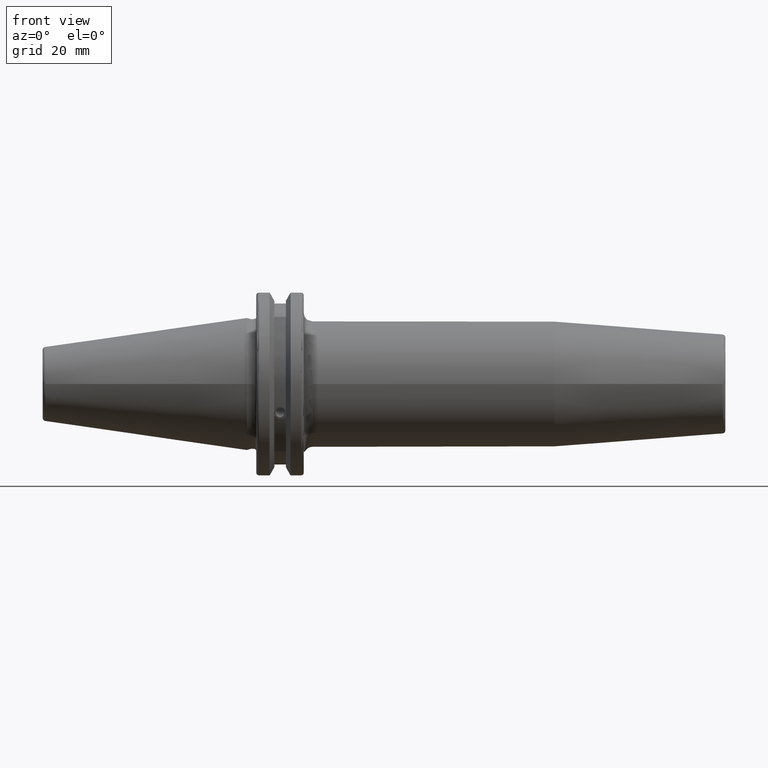
[diagram: clean part render]
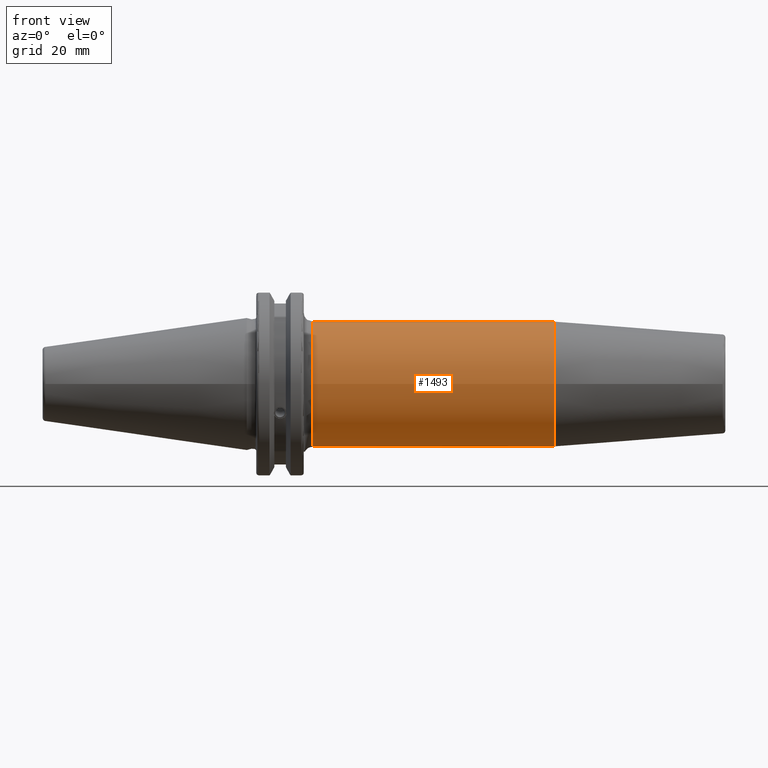
[diagram: same view with one face highlighted and labeled with its STEP entity id]
A machine part, front view. The second image highlights one B-rep face of the part: STEP entity #1493.
In plain terms, the highlighted cylindrical surface (bore or boss wall) has radius 21 mm, axis along (1, 0, 0).
Its self-contained STEP definition (entity closure, byte-faithful):
#49=CYLINDRICAL_SURFACE('',#1613,21.);
#165=LINE('',#2281,#258);
#258=VECTOR('',#1810,21.);
#367=FACE_OUTER_BOUND('',#455,.T.);
#455=EDGE_LOOP('',(#1034,#1035,#1036,#1037,#1038));
#556=CIRCLE('',#1605,21.);
#558=CIRCLE('',#1609,21.);
#561=CIRCLE('',#1612,21.);
#628=VERTEX_POINT('',#2238);
#630=VERTEX_POINT('',#2245);
#631=VERTEX_POINT('',#2246);
#784=EDGE_CURVE('',#628,#628,#556,.T.);
#786=EDGE_CURVE('',#630,#631,#558,.T.);
#793=EDGE_CURVE('',#631,#630,#561,.T.);
#794=EDGE_CURVE('',#628,#630,#165,.T.);
#1034=ORIENTED_EDGE('',*,*,#784,.F.);
#1035=ORIENTED_EDGE('',*,*,#794,.T.);
#1036=ORIENTED_EDGE('',*,*,#793,.F.);
#1037=ORIENTED_EDGE('',*,*,#786,.F.);
#1038=ORIENTED_EDGE('',*,*,#794,.F.);
#1493=ADVANCED_FACE('',(#367),#49,.T.);
#1605=AXIS2_PLACEMENT_3D('',#2240,#1792,#1793);
#1609=AXIS2_PLACEMENT_3D('',#2247,#1800,#1801);
#1612=AXIS2_PLACEMENT_3D('',#2279,#1806,#1807);
#1613=AXIS2_PLACEMENT_3D('',#2280,#1808,#1809);
#1792=DIRECTION('center_axis',(1.,0.,0.));
#1793=DIRECTION('ref_axis',(0.,0.,-1.));
#1800=DIRECTION('center_axis',(-1.,0.,0.));
#1801=DIRECTION('ref_axis',(0.,-1.,-1.22464679914735E-16));
#1806=DIRECTION('center_axis',(-1.,0.,0.));
#1807=DIRECTION('ref_axis',(0.,-1.,-1.22464679914735E-16));
#1808=DIRECTION('center_axis',(1.,0.,0.));
#1809=DIRECTION('ref_axis',(0.,1.,0.));
#1810=DIRECTION('',(-1.,0.,0.));
#2238=CARTESIAN_POINT('',(102.822078687214,-21.,-2.57175827820944E-15));
#2240=CARTESIAN_POINT('Origin',(102.822078687214,0.,0.));
#2245=CARTESIAN_POINT('',(22.05,-21.,-2.57175827820944E-15));
#2246=CARTESIAN_POINT('',(22.05,-2.57175827820944E-15,-21.));
#2247=CARTESIAN_POINT('Origin',(22.05,0.,0.));
#2279=CARTESIAN_POINT('Origin',(22.05,0.,0.));
#2280=CARTESIAN_POINT('Origin',(60.9360393436069,0.,0.));
#2281=CARTESIAN_POINT('',(60.9360393436069,-21.,-2.57175827820944E-15));